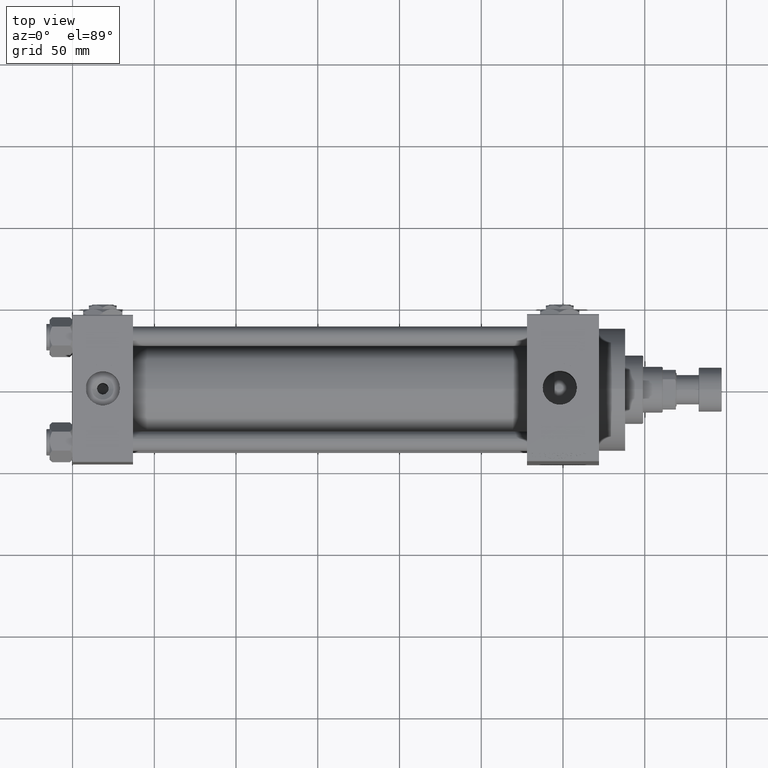
[diagram: clean part render]
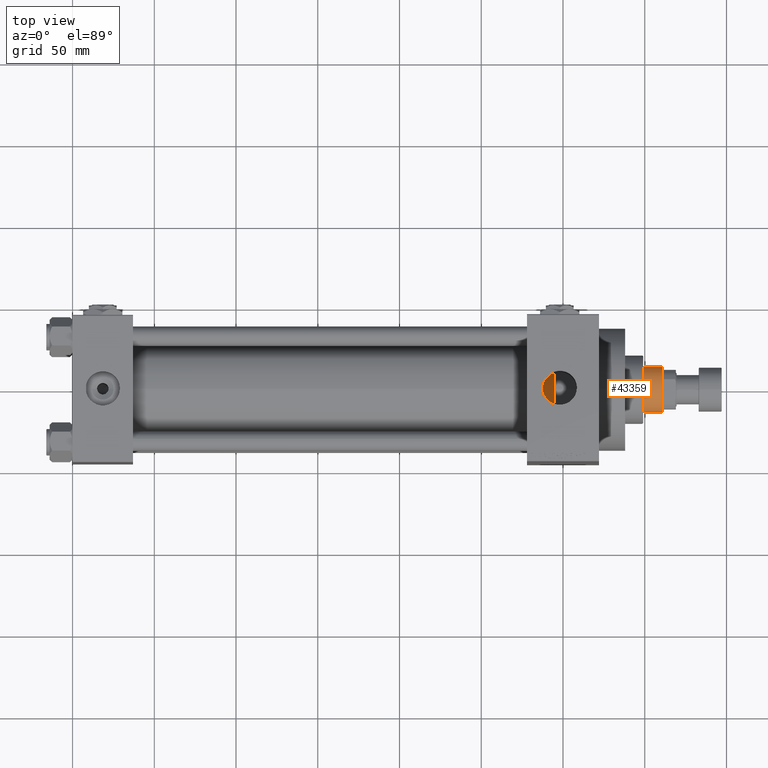
[diagram: same view with one face highlighted and labeled with its STEP entity id]
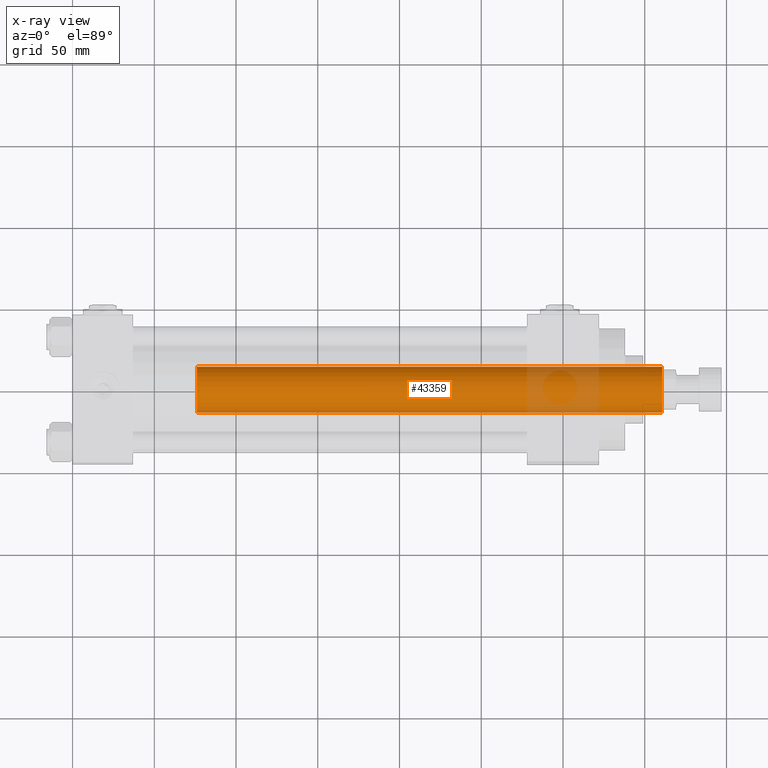
[diagram: x-ray of the same camera — body ghosted, the highlighted face saturated]
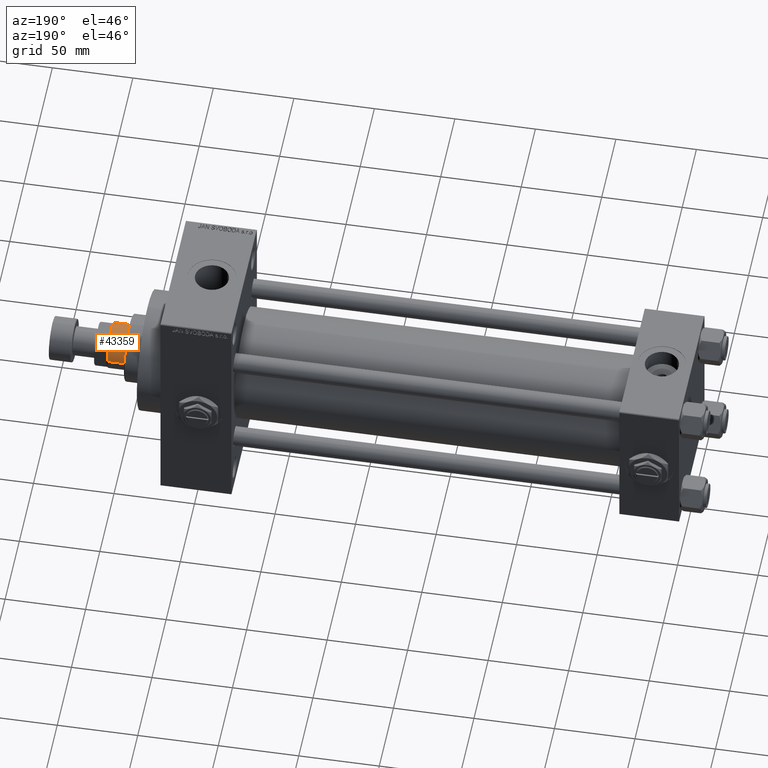
[diagram: same view with one face highlighted and labeled with its STEP entity id]
A machine part, top view. The second image highlights one B-rep face of the part: STEP entity #43359.
The next image is the same camera in x-ray: the body ghosted, the highlighted face saturated — about 11% of this face is hidden behind the body in this view.
A second angle (auxiliary view) of the same face is appended — the face is thin or edge-on in the first view.
In plain terms, the highlighted cylindrical surface (edge-blend (fillet) strip) has radius 14 mm, axis along (-1, 0, 0).
Its self-contained STEP definition (entity closure, byte-faithful):
#1651 = ORIENTED_EDGE ( 'NONE', *, *, #31483, .T. ) ;
#3352 = CARTESIAN_POINT ( 'NONE',  ( -14.00000000000000178, 0.000000000000000000, 323.9999999999999432 ) ) ;
#3613 = ORIENTED_EDGE ( 'NONE', *, *, #34037, .T. ) ;
#5540 = VECTOR ( 'NONE', #30295, 1000.000000000000000 ) ;
#5819 = CARTESIAN_POINT ( 'NONE',  ( -14.00000000000000178, 0.000000000000000000, 323.4999999999999432 ) ) ;
#9141 = CYLINDRICAL_SURFACE ( 'NONE', #14188, 14.00000000000000178 ) ;
#10490 = CARTESIAN_POINT ( 'NONE',  ( 0.000000000000000000, 0.000000000000000000, 323.4999999999999432 ) ) ;
#12017 = VERTEX_POINT ( 'NONE', #5819 ) ;
#13528 = DIRECTION ( 'NONE',  ( 1.000000000000000000, 0.000000000000000000, 0.000000000000000000 ) ) ;
#14188 = AXIS2_PLACEMENT_3D ( 'NONE', #39877, #47659, #21000 ) ;
#15704 = DIRECTION ( 'NONE',  ( 0.000000000000000000, 0.000000000000000000, 1.000000000000000000 ) ) ;
#18632 = CARTESIAN_POINT ( 'NONE',  ( 14.00000000000000178, 1.714505518806294835E-15, 323.9999999999999432 ) ) ;
#19749 = AXIS2_PLACEMENT_3D ( 'NONE', #10490, #48014, #13528 ) ;
#20183 = EDGE_CURVE ( 'NONE', #27078, #12017, #22165, .T. ) ;
#21000 = DIRECTION ( 'NONE',  ( -1.000000000000000000, 0.000000000000000000, 0.000000000000000000 ) ) ;
#21886 = CARTESIAN_POINT ( 'NONE',  ( -14.00000000000000178, 0.000000000000000000, 39.00000000000000000 ) ) ;
#22114 = VERTEX_POINT ( 'NONE', #27754 ) ;
#22132 = CARTESIAN_POINT ( 'NONE',  ( 14.00000000000000178, 1.714505518806294835E-15, 323.4999999999999432 ) ) ;
#22165 = CIRCLE ( 'NONE', #19749, 14.00000000000000178 ) ;
#25713 = EDGE_LOOP ( 'NONE', ( #42314, #30379, #3613, #1651 ) ) ;
#27078 = VERTEX_POINT ( 'NONE', #22132 ) ;
#27754 = CARTESIAN_POINT ( 'NONE',  ( 14.00000000000000178, 1.714505518806294835E-15, 39.00000000000000000 ) ) ;
#30295 = DIRECTION ( 'NONE',  ( -0.000000000000000000, -0.000000000000000000, -1.000000000000000000 ) ) ;
#30347 = CARTESIAN_POINT ( 'NONE',  ( 0.000000000000000000, 0.000000000000000000, 39.00000000000000000 ) ) ;
#30379 = ORIENTED_EDGE ( 'NONE', *, *, #20183, .T. ) ;
#31483 = EDGE_CURVE ( 'NONE', #47137, #22114, #48166, .T. ) ;
#34037 = EDGE_CURVE ( 'NONE', #12017, #47137, #38588, .T. ) ;
#34615 = DIRECTION ( 'NONE',  ( 1.000000000000000000, 0.000000000000000000, 0.000000000000000000 ) ) ;
#36430 = EDGE_CURVE ( 'NONE', #27078, #22114, #49302, .T. ) ;
#37765 = DIRECTION ( 'NONE',  ( -0.000000000000000000, -0.000000000000000000, -1.000000000000000000 ) ) ;
#38588 = LINE ( 'NONE', #3352, #5540 ) ;
#39877 = CARTESIAN_POINT ( 'NONE',  ( 0.000000000000000000, 0.000000000000000000, 323.9999999999999432 ) ) ;
#42314 = ORIENTED_EDGE ( 'NONE', *, *, #36430, .F. ) ;
#43359 = ADVANCED_FACE ( 'NONE', ( #43649 ), #9141, .T. ) ;
#43649 = FACE_OUTER_BOUND ( 'NONE', #25713, .T. ) ;
#44156 = AXIS2_PLACEMENT_3D ( 'NONE', #30347, #15704, #34615 ) ;
#47137 = VERTEX_POINT ( 'NONE', #21886 ) ;
#47659 = DIRECTION ( 'NONE',  ( -0.000000000000000000, -0.000000000000000000, -1.000000000000000000 ) ) ;
#48014 = DIRECTION ( 'NONE',  ( 0.000000000000000000, 0.000000000000000000, -1.000000000000000000 ) ) ;
#48166 = CIRCLE ( 'NONE', #44156, 14.00000000000000178 ) ;
#48502 = VECTOR ( 'NONE', #37765, 1000.000000000000000 ) ;
#49302 = LINE ( 'NONE', #18632, #48502 ) ;